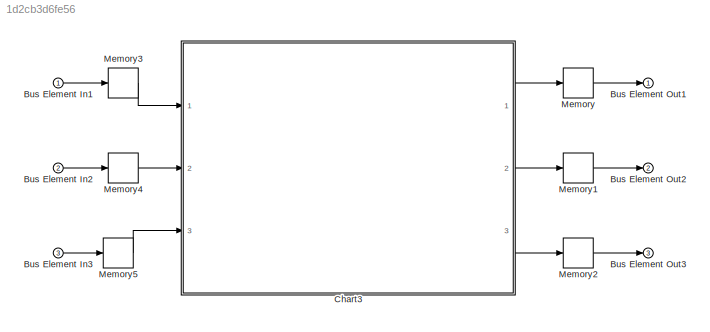
MODEL slx_1d2cb3d6fe56
KIND model
CONFIG AbsTol = auto
CONFIG EnableMultiTasking = off
CONFIG FixedStep = auto
CONFIG MaxStep = auto
CONFIG MinStep = auto
CONFIG RelTol = 1e-3
CONFIG SampleTimeConstraint = Unconstrained
CONFIG Solver = VariableStepAuto
CONFIG SolverName = VariableStepAuto
CONFIG StartTime = 0.0
CONFIG StopTime = 10.0
BLOCK [Inport] Bus Element In1
  IconDisplay = Port number
BLOCK [Inport] Bus Element In2
  IconDisplay = Port number
  Port = 2
BLOCK [Inport] Bus Element In3
  IconDisplay = Port number
  Port = 3
BLOCK [Outport] Bus Element Out1
  IconDisplay = Port number
BLOCK [Outport] Bus Element Out2
  IconDisplay = Port number
  Port = 2
BLOCK [Outport] Bus Element Out3
  IconDisplay = Port number
  Port = 3
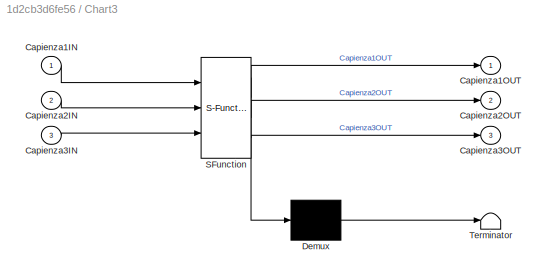
BLOCK [SubSystem] Chart3
  BlockKeywords = __PRM__SERIALIZED__DATA__:Stateflow Chart,Stateflow Diagram
  ErrorFcn = Stateflow.Translate.translate
  PermitHierarchicalResolution = ExplicitOnly
  Ports = [3, 3]
  RequestExecContextInheritance = off
  SFBlockType = Chart
  TreatAsAtomicUnit = on
BLOCK [Demux] Chart3/ Demux 
  Outputs = 1
  Ports = [1, 1]
BLOCK [S-Function] Chart3/ SFunction 
  EnableBusSupport = on
  FunctionName = sf_sfun
  PortCounts = [3 4]
  Ports = [3, 4]
  SFcnIsStateOwnerBlock = off
  SFunctionDeploymentMode = off
  Tag = Stateflow S-Function SostituisciScatola 4
BLOCK [Terminator] Chart3/ Terminator 
BLOCK [Inport] Chart3/Capienza1IN
  IconDisplay = Port number
BLOCK [Outport] Chart3/Capienza1OUT
  IconDisplay = Port number
BLOCK [Inport] Chart3/Capienza2IN
  IconDisplay = Port number
  Port = 2
BLOCK [Outport] Chart3/Capienza2OUT
  IconDisplay = Port number
  Port = 2
BLOCK [Inport] Chart3/Capienza3IN
  IconDisplay = Port number
  Port = 3
BLOCK [Outport] Chart3/Capienza3OUT
  IconDisplay = Port number
  Port = 3
BLOCK [Memory] Memory
BLOCK [Memory] Memory1
BLOCK [Memory] Memory2
BLOCK [Memory] Memory3
BLOCK [Memory] Memory4
BLOCK [Memory] Memory5
LINE Bus Element In1:1 -> Memory3:1
LINE Bus Element In2:1 -> Memory4:1
LINE Bus Element In3:1 -> Memory5:1
LINE Chart3:1 -> Memory:1
LINE Chart3:2 -> Memory1:1
LINE Chart3:3 -> Memory2:1
LINE Memory1:1 -> Bus Element Out2:1
LINE Memory2:1 -> Bus Element Out3:1
LINE Memory3:1 -> Chart3:1
LINE Memory4:1 -> Chart3:2
LINE Memory5:1 -> Chart3:3
LINE Memory:1 -> Bus Element Out1:1
CHART Chart3 states=4 transitions=7
  STATE_LABEL 'Idle\nCapienza1OUT=0;\nCapienza2OUT=0;\nCapienza3OUT=0;'
  STATE_LABEL 'Scatola1Expired\nCapienza1OUT=1;'
  STATE_LABEL 'Scatola2Expired\nCapienza2OUT=1;'
  STATE_LABEL 'Scatola3Expired\nCapienza3OUT=1;'
